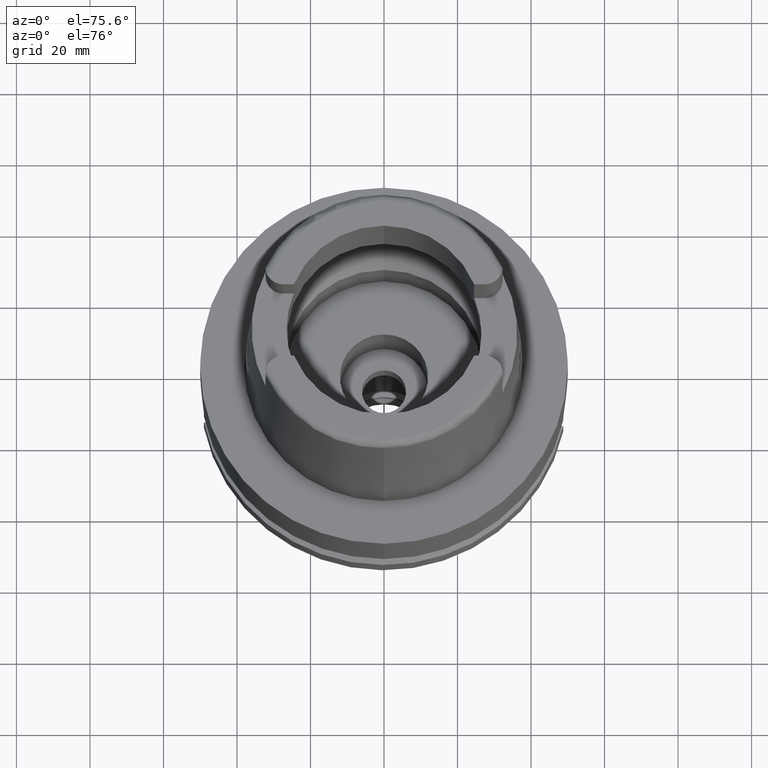
[diagram: clean part render]
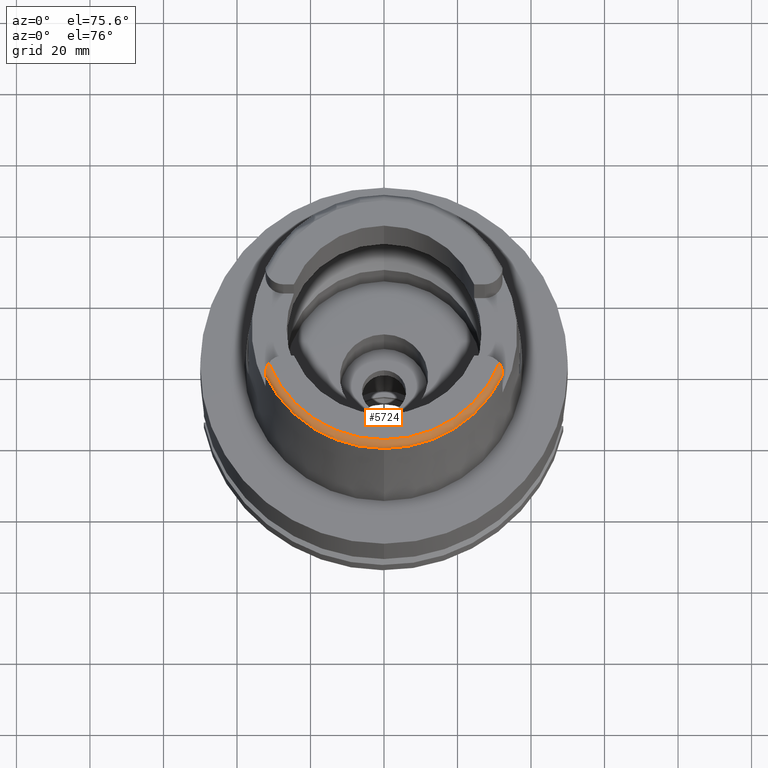
[diagram: same view with one face highlighted and labeled with its STEP entity id]
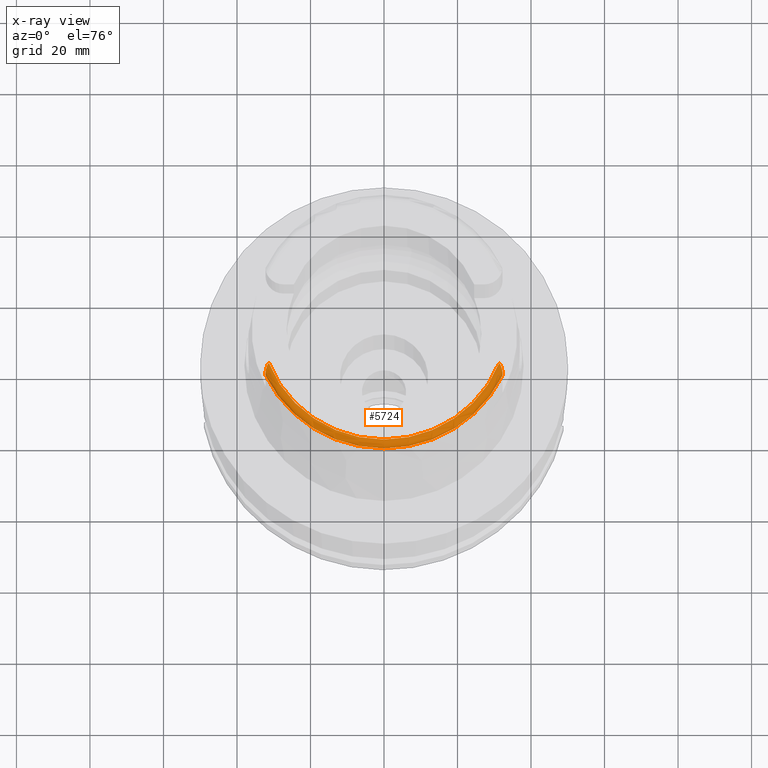
[diagram: x-ray of the same camera — body ghosted, the highlighted face saturated]
A machine part, auxiliary view. The second image highlights one B-rep face of the part: STEP entity #5724.
The next image is the same camera in x-ray: the body ghosted, the highlighted face saturated — about 0% of this face is hidden behind the body in this view.
In plain terms, the highlighted toroidal blend (fillet) surface has major radius 33.5974 mm and minor (blend) radius 2 mm.
Its self-contained STEP definition (entity closure, byte-faithful):
#57 = CARTESIAN_POINT ( 'NONE',  ( 31.88501051893932114, -13.03787513083463701, 49.81057631972034727 ) ) ;
#63 = CARTESIAN_POINT ( 'NONE',  ( 32.25000000000000000, -14.89000000000000057, 48.54599893821999501 ) ) ;
#92 = AXIS2_PLACEMENT_3D ( 'NONE', #3250, #4055, #3217 ) ;
#171 = DIRECTION ( 'NONE',  ( 0.9332215253017949186, -0.3593015233941980191, 0.0000000000000000000 ) ) ;
#328 = CARTESIAN_POINT ( 'NONE',  ( 0.0000000000000000000, 0.0000000000000000000, 48.09987853799000135 ) ) ;
#341 = CARTESIAN_POINT ( 'NONE',  ( -31.95925560088777573, -13.22885168131872291, 49.73836054508238647 ) ) ;
#371 = CARTESIAN_POINT ( 'NONE',  ( -32.20765348317902976, -14.23794757044831805, 49.18191153958929362 ) ) ;
#393 = CARTESIAN_POINT ( 'NONE',  ( 32.23108567202232422, -14.46068397825482599, 49.00535681387783171 ) ) ;
#425 = CARTESIAN_POINT ( 'NONE',  ( 32.20676853504264159, -14.24064994246350402, 49.17718377422072251 ) ) ;
#455 = CARTESIAN_POINT ( 'NONE',  ( 32.24999999999774047, -14.84162150450161022, 48.61746104878631058 ) ) ;
#485 = CARTESIAN_POINT ( 'NONE',  ( 32.12663361643652138, -13.79943853218428096, 49.45955937316178819 ) ) ;
#504 = ORIENTED_EDGE ( 'NONE', *, *, #4543, .F. ) ;
#512 = CARTESIAN_POINT ( 'NONE',  ( 32.23045449449328004, -14.45361802017006703, 49.01129223169334637 ) ) ;
#609 = CARTESIAN_POINT ( 'NONE',  ( 31.35385269249000473, -12.07161079256999869, 50.00000000000000000 ) ) ;
#661 = AXIS2_PLACEMENT_3D ( 'NONE', #328, #1299, #6016 ) ;
#711 = CARTESIAN_POINT ( 'NONE',  ( -32.14188386526372199, -13.86758871785924008, 49.42043352606598461 ) ) ;
#712 = EDGE_CURVE ( 'NONE', #4727, #928, #4439, .T. ) ;
#774 = CARTESIAN_POINT ( 'NONE',  ( -32.03653501946926951, -13.45369441280180212, 49.64185035234755361 ) ) ;
#803 = CARTESIAN_POINT ( 'NONE',  ( -32.24999491821000674, -15.06448488039999845, 48.09973200667999294 ) ) ;
#843 = CARTESIAN_POINT ( 'NONE',  ( -32.11886389109815809, -13.76626208047126632, 49.47811533726807198 ) ) ;
#927 = CARTESIAN_POINT ( 'NONE',  ( 32.13581645002494724, -13.84019760414932598, 49.43617409703892207 ) ) ;
#928 = VERTEX_POINT ( 'NONE', #5611 ) ;
#960 = CARTESIAN_POINT ( 'NONE',  ( 31.99303592374031524, -13.32737054660307940, 49.69568231280364756 ) ) ;
#982 = CARTESIAN_POINT ( 'NONE',  ( -32.25000000000000000, -14.89000000000000057, 48.54599893821999501 ) ) ;
#991 = CARTESIAN_POINT ( 'NONE',  ( 31.96068247318003230, -13.23235454892166985, 49.73679633960581725 ) ) ;
#1214 = CARTESIAN_POINT ( 'NONE',  ( 0.0000000000000000000, 0.0000000000000000000, 48.09987853799000135 ) ) ;
#1248 = CARTESIAN_POINT ( 'NONE',  ( -31.67622859466987606, -12.57267652897120058, 49.95647290208025026 ) ) ;
#1299 = DIRECTION ( 'NONE',  ( 0.0000000000000000000, 0.0000000000000000000, -1.000000000000000000 ) ) ;
#1312 = CARTESIAN_POINT ( 'NONE',  ( -31.35385269249000473, -12.07161079256999869, 50.00000000000000000 ) ) ;
#1317 = FACE_OUTER_BOUND ( 'NONE', #2730, .T. ) ;
#1401 = CARTESIAN_POINT ( 'NONE',  ( 32.24345692084457937, -14.63097179132637216, 48.85150678636247790 ) ) ;
#1428 = CARTESIAN_POINT ( 'NONE',  ( 31.99030056473390360, -13.31930140617705760, 49.69918553158885288 ) ) ;
#1459 = CARTESIAN_POINT ( 'NONE',  ( 31.99010999209295392, -13.31873899633934499, 49.69942976515587674 ) ) ;
#1487 = CARTESIAN_POINT ( 'NONE',  ( 32.19964639963450992, -14.19045961563918290, 49.21277551726118560 ) ) ;
#1603 = AXIS2_PLACEMENT_3D ( 'NONE', #1214, #2222, #1759 ) ;
#1759 = DIRECTION ( 'NONE',  ( 0.0000000000000000000, -1.000000000000000000, 0.0000000000000000000 ) ) ;
#1794 = AXIS2_PLACEMENT_3D ( 'NONE', #4981, #4951, #171 ) ;
#1823 = CARTESIAN_POINT ( 'NONE',  ( -32.23205443839001560, -14.47171869214949425, 48.99605636501187433 ) ) ;
#1846 = CARTESIAN_POINT ( 'NONE',  ( 32.22608938981036175, -14.40559700293763079, 49.05136715740649578 ) ) ;
#1875 = CARTESIAN_POINT ( 'NONE',  ( 32.19579709680366619, -14.16460186493927687, 49.23075382003135303 ) ) ;
#1905 = ORIENTED_EDGE ( 'NONE', *, *, #712, .F. ) ;
#1931 = CARTESIAN_POINT ( 'NONE',  ( 32.01219265178566786, -13.38527751635058927, 49.67005753194553108 ) ) ;
#1961 = CARTESIAN_POINT ( 'NONE',  ( 31.86186608660669606, -12.98214165610225734, 49.83009531858678542 ) ) ;
#1968 = CARTESIAN_POINT ( 'NONE',  ( 32.25000000000000000, -14.98829434910743608, 48.40080381441515556 ) ) ;
#2030 = B_SPLINE_CURVE_WITH_KNOTS ( 'NONE', 3,
 ( #4753, #455, #3325, #2809, #1401, #3740, #4202, #4694, #2312, #393, #512, #1846, #6122, #3355, #425, #1487, #1875, #5213, #2372, #5272, #6085, #3297, #3828, #5183, #5241, #927, #485, #4723, #4263, #2431, #4293, #6145, #1931, #2897, #5672, #960, #5705, #1428, #1459, #991, #4323, #57, #1961, #5738, #3388, #5858, #4807, #2113, #2086 ),
 .UNSPECIFIED., .F., .F.,
 ( 4, 2, 2, 1, 1, 2, 2, 2, 1, 1, 1, 2, 2, 2, 2, 2, 2, 2, 2, 1, 1, 1, 2, 2, 2, 1, 2, 2, 4 ),
 ( 0.0000000000000000000, 0.1250000000000756062, 0.1875000000001134093, 0.2187500000001299794, 0.2343750000001361411, 0.2421875000001398881, 0.2500000000001436073, 0.3125000000002088330, 0.3437500000002418066, 0.3593750000002572942, 0.3671875000002643996, 0.3710937500002679523, 0.3750000000002715606, 0.4375000000003084755, 0.4687500000003248513, 0.4843750000003337330, 0.5000000000003426148, 0.5625000000003714806, 0.5937500000003864686, 0.6093750000003932410, 0.6171875000003979039, 0.6210937500003979039, 0.6230468750003975709, 0.6250000000003973488, 0.6875000000003318457, 0.7187500000002989831, 0.7343750000002828848, 0.7500000000002667866, 1.000000000000000000 ),
 .UNSPECIFIED. ) ;
#2086 = CARTESIAN_POINT ( 'NONE',  ( 31.35385269249000473, -12.07161079256999869, 50.00000000000000000 ) ) ;
#2113 = CARTESIAN_POINT ( 'NONE',  ( 31.51372830780801237, -12.29759835274191637, 49.99999999999937472 ) ) ;
#2180 = CARTESIAN_POINT ( 'NONE',  ( -32.25000000000000000, -14.98833473103604774, 48.40074416439423999 ) ) ;
#2222 = DIRECTION ( 'NONE',  ( 0.0000000000000000000, 0.0000000000000000000, -1.000000000000000000 ) ) ;
#2256 = CARTESIAN_POINT ( 'NONE',  ( -31.87233780460109500, -13.00592699910944816, 49.82245733778957941 ) ) ;
#2279 = CARTESIAN_POINT ( 'NONE',  ( 32.25000000000000000, -14.89000000000000057, 48.54599893821999501 ) ) ;
#2288 = CARTESIAN_POINT ( 'NONE',  ( -32.15148969404019397, -13.91392502003318832, 49.39281420107365506 ) ) ;
#2296 = TOROIDAL_SURFACE ( 'NONE', #92, 33.59743838135999994, 2.000000000000000000 ) ;
#2312 = CARTESIAN_POINT ( 'NONE',  ( 32.23215516193665309, -14.47292938498069859, 48.99498417426094221 ) ) ;
#2372 = CARTESIAN_POINT ( 'NONE',  ( 32.19292670422905900, -14.14582223267957062, 49.24366450576741983 ) ) ;
#2381 = VERTEX_POINT ( 'NONE', #5338 ) ;
#2431 = CARTESIAN_POINT ( 'NONE',  ( 32.07034186266066911, -13.57624263937215758, 49.57968847398994683 ) ) ;
#2438 = CARTESIAN_POINT ( 'NONE',  ( -32.24999491821000674, -15.06448488039999845, 48.09973200667999294 ) ) ;
#2563 = VERTEX_POINT ( 'NONE', #982 ) ;
#2579 = CIRCLE ( 'NONE', #1794, 33.59743838135999994 ) ;
#2600 = ORIENTED_EDGE ( 'NONE', *, *, #6101, .F. ) ;
#2622 = CARTESIAN_POINT ( 'NONE',  ( -32.16955740306367062, -14.00540236400041572, 49.33693240148328840 ) ) ;
#2645 = CARTESIAN_POINT ( 'NONE',  ( 32.25000552016999222, -15.06439823332000039, 48.10004217616999966 ) ) ;
#2712 = CARTESIAN_POINT ( 'NONE',  ( -32.25000000000000000, -14.89000000000000057, 48.54599893821999501 ) ) ;
#2720 = CARTESIAN_POINT ( 'NONE',  ( -32.23112235272184023, -14.46098705791141370, 49.00514281872018074 ) ) ;
#2730 = EDGE_LOOP ( 'NONE', ( #2600, #1905, #504, #4076, #5194, #3651, #3306 ) ) ;
#2757 = CARTESIAN_POINT ( 'NONE',  ( -32.22073351355346205, -14.34668345541638956, 49.10054221100810423 ) ) ;
#2809 = CARTESIAN_POINT ( 'NONE',  ( 32.24539060839101268, -14.67089266507467471, 48.81135795402934718 ) ) ;
#2897 = CARTESIAN_POINT ( 'NONE',  ( 32.00495016665645664, -13.36301673748845609, 49.68003781332617308 ) ) ;
#3112 = CARTESIAN_POINT ( 'NONE',  ( -32.23397439908608675, -14.49467018908236682, 48.97638098469585799 ) ) ;
#3179 = CIRCLE ( 'NONE', #1603, 35.59494289391000166 ) ;
#3217 = DIRECTION ( 'NONE',  ( -0.0004184165975219878483, -0.9999999124637716230, 0.0000000000000000000 ) ) ;
#3250 = CARTESIAN_POINT ( 'NONE',  ( 0.0000000000000000000, 0.0000000000000000000, 48.00000000000000000 ) ) ;
#3297 = CARTESIAN_POINT ( 'NONE',  ( 32.17703005577844522, -14.04632006570887981, 49.31049704520395949 ) ) ;
#3306 = ORIENTED_EDGE ( 'NONE', *, *, #3796, .F. ) ;
#3325 = CARTESIAN_POINT ( 'NONE',  ( 32.24950223563767793, -14.78103098754588274, 48.69318325278221238 ) ) ;
#3355 = CARTESIAN_POINT ( 'NONE',  ( 32.21195271811711081, -14.28107436829919585, 49.14737689059579395 ) ) ;
#3388 = CARTESIAN_POINT ( 'NONE',  ( 31.82291964057918676, -12.89345178899193733, 49.85882159546898862 ) ) ;
#3582 = CARTESIAN_POINT ( 'NONE',  ( -31.93157148334168483, -13.15424587519174615, 49.76804792932180277 ) ) ;
#3647 = CARTESIAN_POINT ( 'NONE',  ( -32.12411354023571874, -13.78869563276566801, 49.46554120682834821 ) ) ;
#3651 = ORIENTED_EDGE ( 'NONE', *, *, #6112, .F. ) ;
#3678 = CARTESIAN_POINT ( 'NONE',  ( -32.12960978261189382, -13.81251354445495849, 49.45209331598540103 ) ) ;
#3683 = VERTEX_POINT ( 'NONE', #2279 ) ;
#3710 = CARTESIAN_POINT ( 'NONE',  ( -32.25000000000000711, -14.83731662173926935, 48.62381998998148447 ) ) ;
#3740 = CARTESIAN_POINT ( 'NONE',  ( 32.23937220770935852, -14.56617366814906944, 48.91256230904098601 ) ) ;
#3796 = EDGE_CURVE ( 'NONE', #4481, #2563, #5722, .T. ) ;
#3828 = CARTESIAN_POINT ( 'NONE',  ( 32.15902243423485629, -13.95109781554902106, 49.37002965056942116 ) ) ;
#3833 = CARTESIAN_POINT ( 'NONE',  ( 32.25000552016999222, -15.06439823332000039, 48.10004217616999966 ) ) ;
#3862 = CARTESIAN_POINT ( 'NONE',  ( 32.25000000000000000, -15.04642709354743602, 48.25215156039848807 ) ) ;
#3911 = EDGE_CURVE ( 'NONE', #3683, #3915, #2030, .T. ) ;
#3915 = VERTEX_POINT ( 'NONE', #609 ) ;
#4055 = DIRECTION ( 'NONE',  ( 0.0000000000000000000, 0.0000000000000000000, 1.000000000000000000 ) ) ;
#4076 = ORIENTED_EDGE ( 'NONE', *, *, #3911, .T. ) ;
#4083 = CARTESIAN_POINT ( 'NONE',  ( -31.52232710221400325, -12.30975293029680095, 49.99999999999998579 ) ) ;
#4118 = CARTESIAN_POINT ( 'NONE',  ( -32.24918061190438578, -14.77410710238878444, 48.70187583361024508 ) ) ;
#4181 = CARTESIAN_POINT ( 'NONE',  ( -32.18007780860494904, -14.06479252686628811, 49.29882033561548837 ) ) ;
#4202 = CARTESIAN_POINT ( 'NONE',  ( 32.23703375019729123, -14.53254558098054261, 48.94329726108545486 ) ) ;
#4263 = CARTESIAN_POINT ( 'NONE',  ( 32.09373140511423372, -13.66103920033119579, 49.53650382679176545 ) ) ;
#4293 = CARTESIAN_POINT ( 'NONE',  ( 32.03763133232274640, -13.46591468538752956, 49.63297955209345247 ) ) ;
#4323 = CARTESIAN_POINT ( 'NONE',  ( 31.93080439553677152, -13.15224095921611536, 49.76863386883907481 ) ) ;
#4439 = CIRCLE ( 'NONE', #661, 35.59494289391000166 ) ;
#4481 = VERTEX_POINT ( 'NONE', #2438 ) ;
#4543 = EDGE_CURVE ( 'NONE', #3683, #4727, #5434, .T. ) ;
#4604 = CARTESIAN_POINT ( 'NONE',  ( -32.24293613866282726, -14.62416659645168515, 48.85851580256927917 ) ) ;
#4694 = CARTESIAN_POINT ( 'NONE',  ( 32.23371313425582230, -14.49114138375079186, 48.97944126455581682 ) ) ;
#4723 = CARTESIAN_POINT ( 'NONE',  ( 32.12219487934654438, -13.78021878104725140, 49.47043273140199204 ) ) ;
#4727 = VERTEX_POINT ( 'NONE', #2645 ) ;
#4753 = CARTESIAN_POINT ( 'NONE',  ( 32.25000000000000000, -14.89000000000000057, 48.54599893821999501 ) ) ;
#4807 = CARTESIAN_POINT ( 'NONE',  ( 31.67128169899183376, -12.56178773895801370, 49.95972117097938536 ) ) ;
#4951 = DIRECTION ( 'NONE',  ( 0.0000000000000000000, 0.0000000000000000000, -1.000000000000000000 ) ) ;
#4969 = CARTESIAN_POINT ( 'NONE',  ( -32.23895034590010056, -14.56111395341045878, 48.91740987309184163 ) ) ;
#4981 = CARTESIAN_POINT ( 'NONE',  ( 0.0000000000000000000, 0.0000000000000000000, 50.00000000000000000 ) ) ;
#5051 = CARTESIAN_POINT ( 'NONE',  ( -32.25000000000000000, -15.04649635783605000, 48.25198852054757026 ) ) ;
#5136 = B_SPLINE_CURVE_WITH_KNOTS ( 'NONE', 3,
 ( #5494, #3710, #4118, #5964, #4604, #4969, #5468, #3112, #1823, #2720, #2757, #371, #4181, #2622, #2288, #711, #3678, #3647, #5560, #843, #5590, #774, #341, #3582, #2256, #5529, #1248, #4083, #1312 ),
 .UNSPECIFIED., .F., .F.,
 ( 4, 2, 2, 1, 2, 2, 2, 2, 1, 1, 2, 2, 2, 2, 2, 4 ),
 ( 0.0000000000000000000, 0.1250000000000003608, 0.1875000000000034972, 0.2187500000000050515, 0.2343750000000031919, 0.2500000000000013878, 0.3749999999999976130, 0.4374999999999968359, 0.4687499999999990563, 0.4843750000000022204, 0.4921875000000023315, 0.5000000000000024425, 0.6250000000000025535, 0.6875000000000008882, 0.7499999999999991118, 1.000000000000000000 ),
 .UNSPECIFIED. ) ;
#5183 = CARTESIAN_POINT ( 'NONE',  ( 32.15212111184574439, -13.91639726858349846, 49.39123300155394958 ) ) ;
#5194 = ORIENTED_EDGE ( 'NONE', *, *, #5299, .T. ) ;
#5213 = CARTESIAN_POINT ( 'NONE',  ( 32.19408351903457799, -14.15335598767584813, 49.23849550225160954 ) ) ;
#5241 = CARTESIAN_POINT ( 'NONE',  ( 32.14010133472046249, -13.85981408149370964, 49.42472816335186536 ) ) ;
#5272 = CARTESIAN_POINT ( 'NONE',  ( 32.19214044976706646, -14.14075017970100845, 49.24713006212154909 ) ) ;
#5299 = EDGE_CURVE ( 'NONE', #3915, #2381, #2579, .T. ) ;
#5338 = CARTESIAN_POINT ( 'NONE',  ( -31.35385269249000473, -12.07161079256999869, 50.00000000000000000 ) ) ;
#5434 = B_SPLINE_CURVE_WITH_KNOTS ( 'NONE', 3,
 ( #63, #1968, #3862, #3833 ),
 .UNSPECIFIED., .F., .F.,
 ( 4, 4 ),
 ( 0.0000000000000000000, 1.000000000000000000 ),
 .UNSPECIFIED. ) ;
#5468 = CARTESIAN_POINT ( 'NONE',  ( -32.23669135309246769, -14.52861631483086313, 48.94687892009068975 ) ) ;
#5494 = CARTESIAN_POINT ( 'NONE',  ( -32.25000000000000000, -14.89000000000000057, 48.54599893821999501 ) ) ;
#5529 = CARTESIAN_POINT ( 'NONE',  ( -31.84007183596668966, -12.93064874767677175, 49.84765515728091145 ) ) ;
#5560 = CARTESIAN_POINT ( 'NONE',  ( -32.12039614731133952, -13.77276980601518197, 49.47447966949007991 ) ) ;
#5590 = CARTESIAN_POINT ( 'NONE',  ( -32.08035231750314153, -13.60495368042675857, 49.56757950383556732 ) ) ;
#5611 = CARTESIAN_POINT ( 'NONE',  ( 1.065814103639999922E-14, -35.59494289391000166, 48.09987853799000135 ) ) ;
#5672 = CARTESIAN_POINT ( 'NONE',  ( 31.99693156353368551, -13.33893648813412369, 49.69063646086634378 ) ) ;
#5705 = CARTESIAN_POINT ( 'NONE',  ( 31.99139133836628801, -13.32251548307463729, 49.69779132347562722 ) ) ;
#5722 = B_SPLINE_CURVE_WITH_KNOTS ( 'NONE', 3,
 ( #803, #5051, #2180, #2712 ),
 .UNSPECIFIED., .F., .F.,
 ( 4, 4 ),
 ( 0.0000000000000000000, 1.000000000000000000 ),
 .UNSPECIFIED. ) ;
#5724 = ADVANCED_FACE ( 'NONE', ( #1317 ), #2296, .T. ) ;
#5738 = CARTESIAN_POINT ( 'NONE',  ( 31.83851579619335226, -12.92862904071105312, 49.84759045062483551 ) ) ;
#5858 = CARTESIAN_POINT ( 'NONE',  ( 31.81578811025131159, -12.87760065211661953, 49.86376875713140322 ) ) ;
#5964 = CARTESIAN_POINT ( 'NONE',  ( -32.24488529250771762, -14.66361087323587142, 48.81931178685439221 ) ) ;
#6016 = DIRECTION ( 'NONE',  ( 0.9060280460804950309, -0.4232176505245974218, 0.0000000000000000000 ) ) ;
#6085 = CARTESIAN_POINT ( 'NONE',  ( 32.18547097253556188, -14.09796987761000508, 49.27628732363086073 ) ) ;
#6101 = EDGE_CURVE ( 'NONE', #928, #4481, #3179, .T. ) ;
#6112 = EDGE_CURVE ( 'NONE', #2563, #2381, #5136, .T. ) ;
#6122 = CARTESIAN_POINT ( 'NONE',  ( 32.22127244307252170, -14.35851482255606726, 49.08887651040438271 ) ) ;
#6145 = CARTESIAN_POINT ( 'NONE',  ( 32.02710898416479068, -13.43194355840141085, 49.64882633380430832 ) ) ;